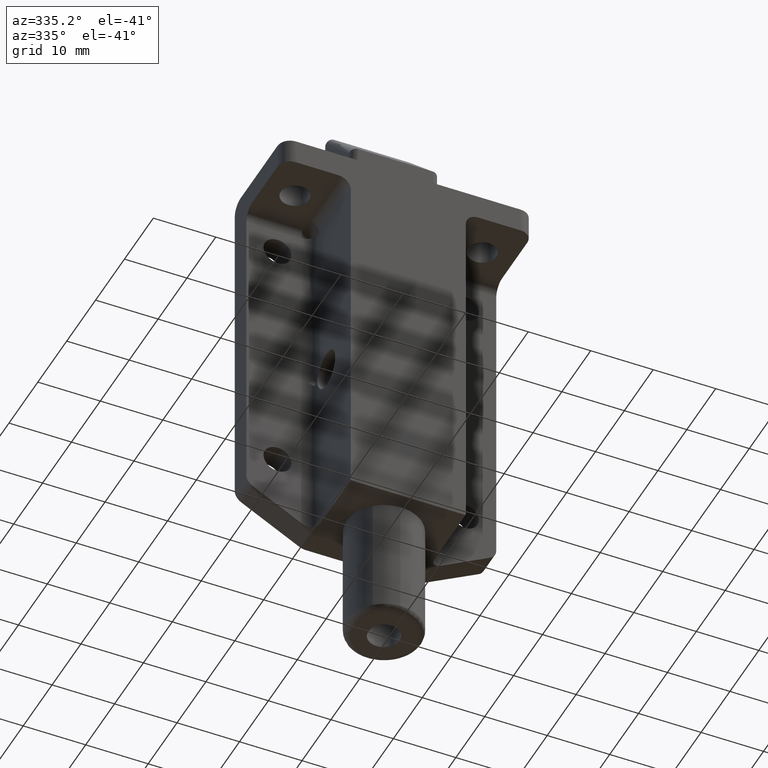
[diagram: clean part render]
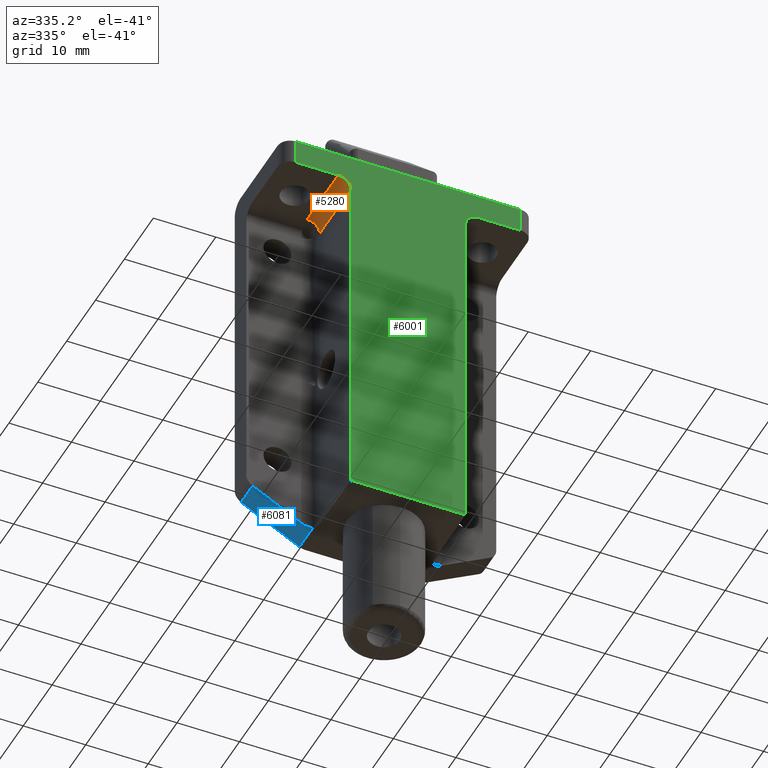
[diagram: same view with three faces highlighted in distinct colors, each labeled with its STEP entity id]
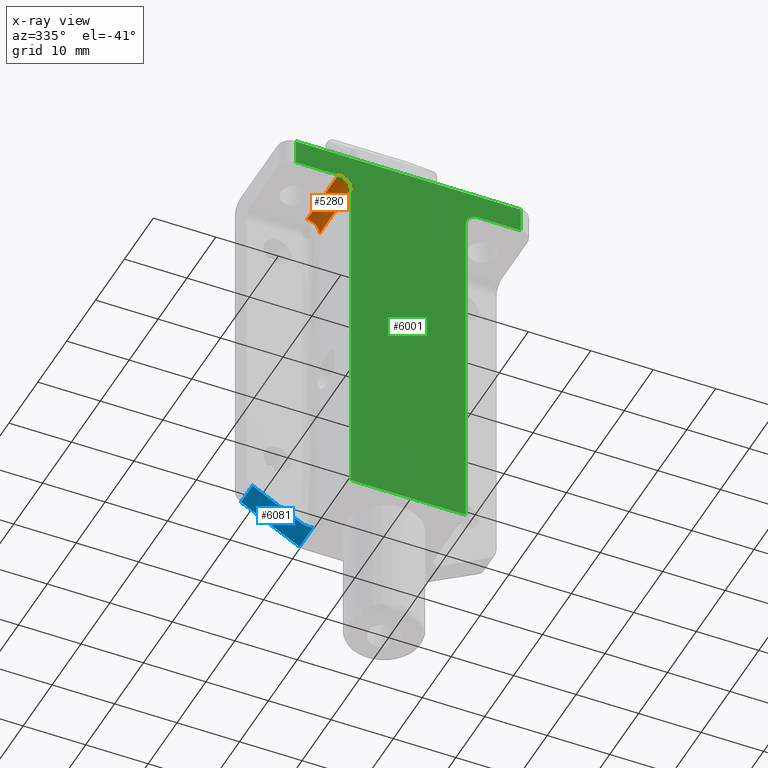
[diagram: x-ray of the same camera — body ghosted, the three highlighted faces saturated]
A machine part, auxiliary view with three faces highlighted in distinct colors.
The next image is the same camera in x-ray (body ghosted, the three faces saturated) — at least one of them is partly hidden behind the body in this view.
Their STEP definitions:

[orange] entity #5280 — the highlighted face is a freeform B-spline surface patch.
#5143=CARTESIAN_POINT('',(9.199999999999999,6.0,-6.0));
#5144=VERTEX_POINT('',#5143);
#5160=CARTESIAN_POINT('',(11.199999999999999,6.0,-4.0));
#5161=VERTEX_POINT('',#5160);
#5162=CARTESIAN_POINT('',(11.199999999999999,6.0,-4.0));
#5163=CARTESIAN_POINT('',(9.199999999999999,6.0,-4.000000000000000));
#5164=CARTESIAN_POINT('',(9.199999999999999,6.0,-6.0));
#5172=(BOUNDED_CURVE()B_SPLINE_CURVE(2,(#5162,#5163,#5164),.UNSPECIFIED.,.F.,.U.)CURVE()GEOMETRIC_REPRESENTATION_ITEM()QUASI_UNIFORM_CURVE()RATIONAL_B_SPLINE_CURVE((1.0,0.707106781186548,1.0))REPRESENTATION_ITEM(''));
#5173=EDGE_CURVE('',#5161,#5144,#5172,.T.);
#5236=CARTESIAN_POINT('',(9.200685350048886,17.070000000000000,-6.052353896615749));
#5237=CARTESIAN_POINT('',(9.200685350048886,5.723250000000000,-6.052353896615749));
#5238=CARTESIAN_POINT('',(9.143551097608020,17.069999999999997,-3.870484822811764));
#5239=CARTESIAN_POINT('',(9.143551097608020,5.723249999999999,-3.870484822811764));
#5240=CARTESIAN_POINT('',(11.322097079069710,17.070000000000000,-4.003730403156267));
#5241=CARTESIAN_POINT('',(11.322097079069710,5.723250000000000,-4.003730403156267));
#5249=(BOUNDED_SURFACE()B_SPLINE_SURFACE(1,2,((#5236,#5238,#5240),(#5237,#5239,#5241)),.UNSPECIFIED.,.F.,.F.,.U.)B_SPLINE_SURFACE_WITH_KNOTS((2,2),(3,3),(0.0,11.346750000000000),(0.0,3.520084247134669),.UNSPECIFIED.)GEOMETRIC_REPRESENTATION_ITEM()RATIONAL_B_SPLINE_SURFACE(((1.0,0.675590207615660,1.0),(1.0,0.675590207615660,1.0)))REPRESENTATION_ITEM('')SURFACE());
#5250=CARTESIAN_POINT('',(11.199999999999999,16.800000000000001,-4.0));
#5251=VERTEX_POINT('',#5250);
#5252=CARTESIAN_POINT('',(11.199999999999999,6.0,-4.0));
#5253=CARTESIAN_POINT('',(11.199999999999999,16.800000000000001,-4.0));
#5254=QUASI_UNIFORM_CURVE('',1,(#5252,#5253),.UNSPECIFIED.,.F.,.U.);
#5255=EDGE_CURVE('',#5161,#5251,#5254,.T.);
#5256=ORIENTED_EDGE('',*,*,#5255,.F.);
#5257=ORIENTED_EDGE('',*,*,#5173,.T.);
#5258=CARTESIAN_POINT('',(9.199999999999999,16.800000000000001,-6.0));
#5259=VERTEX_POINT('',#5258);
#5260=CARTESIAN_POINT('',(9.199999999999999,16.800000000000001,-6.0));
#5261=CARTESIAN_POINT('',(9.199999999999999,6.0,-6.0));
#5262=QUASI_UNIFORM_CURVE('',1,(#5260,#5261),.UNSPECIFIED.,.F.,.U.);
#5263=EDGE_CURVE('',#5259,#5144,#5262,.T.);
#5264=ORIENTED_EDGE('',*,*,#5263,.F.);
#5265=CARTESIAN_POINT('',(11.199999999999999,16.800000000000001,-4.0));
#5266=CARTESIAN_POINT('',(9.199999999999999,16.800000000000001,-4.000000000000000));
#5267=CARTESIAN_POINT('',(9.199999999999999,16.800000000000001,-6.0));
#5275=(BOUNDED_CURVE()B_SPLINE_CURVE(2,(#5265,#5266,#5267),.UNSPECIFIED.,.F.,.U.)CURVE()GEOMETRIC_REPRESENTATION_ITEM()QUASI_UNIFORM_CURVE()RATIONAL_B_SPLINE_CURVE((1.0,0.707106781186548,1.0))REPRESENTATION_ITEM(''));
#5276=EDGE_CURVE('',#5251,#5259,#5275,.T.);
#5277=ORIENTED_EDGE('',*,*,#5276,.F.);
#5278=EDGE_LOOP('',(#5256,#5257,#5264,#5277));
#5279=FACE_OUTER_BOUND('',#5278,.T.);
#5280=ADVANCED_FACE('',(#5279),#5249,.F.);

[blue] entity #6081 — the highlighted face is a freeform B-spline surface patch.
#5607=CARTESIAN_POINT('',(11.199999999999999,4.0,-60.889527885987597));
#5608=VERTEX_POINT('',#5607);
#5622=CARTESIAN_POINT('',(18.999804869913451,4.0,-56.556163451322398));
#5623=VERTEX_POINT('',#5622);
#5637=CARTESIAN_POINT('',(11.199999999999999,4.0,-60.889527885987597));
#5638=CARTESIAN_POINT('',(18.999804869913451,4.0,-56.556163451322398));
#5639=QUASI_UNIFORM_CURVE('',1,(#5637,#5638),.UNSPECIFIED.,.F.,.U.);
#5640=EDGE_CURVE('',#5608,#5623,#5639,.T.);
#5721=CARTESIAN_POINT('',(9.653000063813421,0.0,-61.748999964546897));
#5722=VERTEX_POINT('',#5721);
#5736=CARTESIAN_POINT('',(18.999804869913451,0.0,-56.556163451322398));
#5737=VERTEX_POINT('',#5736);
#5738=CARTESIAN_POINT('',(9.653000063813421,0.0,-61.748999964546897));
#5739=CARTESIAN_POINT('',(18.999804869913451,0.0,-56.556163451322398));
#5740=QUASI_UNIFORM_CURVE('',1,(#5738,#5739),.UNSPECIFIED.,.F.,.U.);
#5741=EDGE_CURVE('',#5722,#5737,#5740,.T.);
#6040=CARTESIAN_POINT('',(18.999804869913451,4.0,-56.556163451322398));
#6041=CARTESIAN_POINT('',(18.999804869913451,0.0,-56.556163451322398));
#6042=QUASI_UNIFORM_CURVE('',1,(#6040,#6041),.UNSPECIFIED.,.F.,.U.);
#6043=EDGE_CURVE('',#5623,#5737,#6042,.T.);
#6051=CARTESIAN_POINT('',(19.466678102826691,-0.236383719651735,-56.296781082565033));
#6052=CARTESIAN_POINT('',(9.186126914467128,-0.236383719651735,-62.008382286876703));
#6053=CARTESIAN_POINT('',(19.466678102826691,4.968790830049432,-56.296781082565033));
#6054=CARTESIAN_POINT('',(9.186126914467128,4.968790830049432,-62.008382286876703));
#6055=B_SPLINE_SURFACE_WITH_KNOTS('',1,1,((#6051,#6053),(#6052,#6054)),.UNSPECIFIED.,.F.,.F.,.U.,(2,2),(2,2),(0.0,11.760617375528200),(0.0,5.205174549701168),.UNSPECIFIED.);
#6056=CARTESIAN_POINT('',(9.653000063813421,4.732407321952790,-61.748999964546897));
#6057=VERTEX_POINT('',#6056);
#6058=CARTESIAN_POINT('',(11.199999999999999,4.0,-60.889527885987597));
#6059=CARTESIAN_POINT('',(10.253125595133206,4.000000000000000,-61.415586157774875));
#6060=CARTESIAN_POINT('',(9.653000063813478,4.732407321952790,-61.748999964546741));
#6068=(BOUNDED_CURVE()B_SPLINE_CURVE(2,(#6058,#6059,#6060),.UNSPECIFIED.,.F.,.U.)CURVE()GEOMETRIC_REPRESENTATION_ITEM()QUASI_UNIFORM_CURVE()RATIONAL_B_SPLINE_CURVE((1.0,0.903824191705334,1.0))REPRESENTATION_ITEM(''));
#6069=EDGE_CURVE('',#5608,#6057,#6068,.T.);
#6070=ORIENTED_EDGE('',*,*,#6069,.F.);
#6071=ORIENTED_EDGE('',*,*,#5640,.T.);
#6072=ORIENTED_EDGE('',*,*,#6043,.T.);
#6073=ORIENTED_EDGE('',*,*,#5741,.F.);
#6074=CARTESIAN_POINT('',(9.653000063813421,4.732407321952790,-61.748999964546897));
#6075=CARTESIAN_POINT('',(9.653000063813421,0.0,-61.748999964546897));
#6076=QUASI_UNIFORM_CURVE('',1,(#6074,#6075),.UNSPECIFIED.,.F.,.U.);
#6077=EDGE_CURVE('',#6057,#5722,#6076,.T.);
#6078=ORIENTED_EDGE('',*,*,#6077,.F.);
#6079=EDGE_LOOP('',(#6070,#6071,#6072,#6073,#6078));
#6080=FACE_OUTER_BOUND('',#6079,.T.);
#6081=ADVANCED_FACE('',(#6080),#6055,.T.);

[green] entity #6001 — the highlighted face is a freeform B-spline surface patch.
#5205=CARTESIAN_POINT('',(-9.199999999999999,16.800000000000001,-6.0));
#5206=VERTEX_POINT('',#5205);
#5213=CARTESIAN_POINT('',(-11.199999999999999,16.800000000000001,-4.0));
#5214=VERTEX_POINT('',#5213);
#5220=CARTESIAN_POINT('',(-9.199999999999999,16.800000000000001,-6.0));
#5221=CARTESIAN_POINT('',(-9.199999999999999,16.800000000000001,-4.000000000000000));
#5222=CARTESIAN_POINT('',(-11.199999999999999,16.800000000000001,-4.0));
#5230=(BOUNDED_CURVE()B_SPLINE_CURVE(2,(#5220,#5221,#5222),.UNSPECIFIED.,.F.,.U.)CURVE()GEOMETRIC_REPRESENTATION_ITEM()QUASI_UNIFORM_CURVE()RATIONAL_B_SPLINE_CURVE((1.0,0.707106781186548,1.0))REPRESENTATION_ITEM(''));
#5231=EDGE_CURVE('',#5206,#5214,#5230,.T.);
#5250=CARTESIAN_POINT('',(11.199999999999999,16.800000000000001,-4.0));
#5251=VERTEX_POINT('',#5250);
#5258=CARTESIAN_POINT('',(9.199999999999999,16.800000000000001,-6.0));
#5259=VERTEX_POINT('',#5258);
#5265=CARTESIAN_POINT('',(11.199999999999999,16.800000000000001,-4.0));
#5266=CARTESIAN_POINT('',(9.199999999999999,16.800000000000001,-4.000000000000000));
#5267=CARTESIAN_POINT('',(9.199999999999999,16.800000000000001,-6.0));
#5275=(BOUNDED_CURVE()B_SPLINE_CURVE(2,(#5265,#5266,#5267),.UNSPECIFIED.,.F.,.U.)CURVE()GEOMETRIC_REPRESENTATION_ITEM()QUASI_UNIFORM_CURVE()RATIONAL_B_SPLINE_CURVE((1.0,0.707106781186548,1.0))REPRESENTATION_ITEM(''));
#5276=EDGE_CURVE('',#5251,#5259,#5275,.T.);
#5385=CARTESIAN_POINT('',(18.0,16.800000000000001,-4.0));
#5386=VERTEX_POINT('',#5385);
#5402=CARTESIAN_POINT('',(18.0,16.800000000000001,0.0));
#5403=VERTEX_POINT('',#5402);
#5404=CARTESIAN_POINT('',(18.0,16.800000000000001,0.0));
#5405=CARTESIAN_POINT('',(18.0,16.800000000000001,-4.0));
#5406=QUASI_UNIFORM_CURVE('',1,(#5404,#5405),.UNSPECIFIED.,.F.,.U.);
#5407=EDGE_CURVE('',#5403,#5386,#5406,.T.);
#5446=CARTESIAN_POINT('',(-18.0,16.800000000000001,0.0));
#5447=VERTEX_POINT('',#5446);
#5463=CARTESIAN_POINT('',(-18.0,16.800000000000001,-4.0));
#5464=VERTEX_POINT('',#5463);
#5465=CARTESIAN_POINT('',(-18.0,16.800000000000001,-4.0));
#5466=CARTESIAN_POINT('',(-18.0,16.800000000000001,0.0));
#5467=QUASI_UNIFORM_CURVE('',1,(#5465,#5466),.UNSPECIFIED.,.F.,.U.);
#5468=EDGE_CURVE('',#5464,#5447,#5467,.T.);
#5498=CARTESIAN_POINT('',(-18.0,16.800000000000001,-4.0));
#5499=CARTESIAN_POINT('',(-11.199999999999999,16.800000000000001,-4.0));
#5500=QUASI_UNIFORM_CURVE('',1,(#5498,#5499),.UNSPECIFIED.,.F.,.U.);
#5501=EDGE_CURVE('',#5464,#5214,#5500,.T.);
#5582=CARTESIAN_POINT('',(18.0,16.800000000000001,-4.0));
#5583=CARTESIAN_POINT('',(11.199999999999999,16.800000000000001,-4.0));
#5584=QUASI_UNIFORM_CURVE('',1,(#5582,#5583),.UNSPECIFIED.,.F.,.U.);
#5585=EDGE_CURVE('',#5386,#5251,#5584,.T.);
#5789=CARTESIAN_POINT('',(-8.681799999999999,16.800000000000001,-62.0));
#5790=VERTEX_POINT('',#5789);
#5796=CARTESIAN_POINT('',(8.681700000000001,16.800000000000001,-62.0));
#5797=VERTEX_POINT('',#5796);
#5798=CARTESIAN_POINT('',(-8.681799999999999,16.800000000000001,-62.0));
#5799=CARTESIAN_POINT('',(8.681700000000001,16.800000000000001,-62.0));
#5800=QUASI_UNIFORM_CURVE('',1,(#5798,#5799),.UNSPECIFIED.,.F.,.U.);
#5801=EDGE_CURVE('',#5790,#5797,#5800,.T.);
#5831=CARTESIAN_POINT('',(-9.199999999999999,16.800000000000001,-61.932226627180697));
#5832=VERTEX_POINT('',#5831);
#5840=CARTESIAN_POINT('',(-9.199999999999985,16.800000000000001,-61.932226627180647));
#5841=CARTESIAN_POINT('',(-8.945378381423758,16.800000000000001,-62.000355334567814));
#5842=CARTESIAN_POINT('',(-8.681799999999999,16.800000000000001,-61.999999999999993));
#5850=(BOUNDED_CURVE()B_SPLINE_CURVE(2,(#5840,#5841,#5842),.UNSPECIFIED.,.F.,.U.)CURVE()GEOMETRIC_REPRESENTATION_ITEM()QUASI_UNIFORM_CURVE()RATIONAL_B_SPLINE_CURVE((1.0,0.991379944130055,1.0))REPRESENTATION_ITEM(''));
#5851=EDGE_CURVE('',#5832,#5790,#5850,.T.);
#5956=CARTESIAN_POINT('',(-19.798199930225021,16.800000000000001,3.096899879831973));
#5957=CARTESIAN_POINT('',(19.798200895820258,16.800000000000001,3.096899879831973));
#5958=CARTESIAN_POINT('',(-19.798199930225021,16.800000000000001,-65.096901542801575));
#5959=CARTESIAN_POINT('',(19.798200895820258,16.800000000000001,-65.096901542801575));
#5960=B_SPLINE_SURFACE_WITH_KNOTS('',1,1,((#5956,#5958),(#5957,#5959)),.UNSPECIFIED.,.F.,.F.,.U.,(2,2),(2,2),(0.0,39.596400826045283),(0.0,68.193801422633555),.UNSPECIFIED.);
#5961=ORIENTED_EDGE('',*,*,#5501,.F.);
#5962=ORIENTED_EDGE('',*,*,#5468,.T.);
#5963=CARTESIAN_POINT('',(18.0,16.800000000000001,0.0));
#5964=CARTESIAN_POINT('',(-18.0,16.800000000000001,0.0));
#5965=QUASI_UNIFORM_CURVE('',1,(#5963,#5964),.UNSPECIFIED.,.F.,.U.);
#5966=EDGE_CURVE('',#5403,#5447,#5965,.T.);
#5967=ORIENTED_EDGE('',*,*,#5966,.F.);
#5968=ORIENTED_EDGE('',*,*,#5407,.T.);
#5969=ORIENTED_EDGE('',*,*,#5585,.T.);
#5970=ORIENTED_EDGE('',*,*,#5276,.T.);
#5971=CARTESIAN_POINT('',(9.199999999999999,16.800000000000001,-61.932198666764812));
#5972=VERTEX_POINT('',#5971);
#5973=CARTESIAN_POINT('',(9.199999999999999,16.800000000000001,-6.0));
#5974=CARTESIAN_POINT('',(9.199999999999999,16.800000000000001,-61.932198666764812));
#5975=QUASI_UNIFORM_CURVE('',1,(#5973,#5974),.UNSPECIFIED.,.F.,.U.);
#5976=EDGE_CURVE('',#5259,#5972,#5975,.T.);
#5977=ORIENTED_EDGE('',*,*,#5976,.T.);
#5978=CARTESIAN_POINT('',(8.681700000000001,16.800000000000001,-61.999999999999872));
#5979=CARTESIAN_POINT('',(8.945331045590171,16.800000000000004,-62.000354204467754));
#5980=CARTESIAN_POINT('',(9.199999999999994,16.800000000000001,-61.932198666764783));
#5988=(BOUNDED_CURVE()B_SPLINE_CURVE(2,(#5978,#5979,#5980),.UNSPECIFIED.,.F.,.U.)CURVE()GEOMETRIC_REPRESENTATION_ITEM()QUASI_UNIFORM_CURVE()RATIONAL_B_SPLINE_CURVE((1.0,0.991376842153680,1.0))REPRESENTATION_ITEM(''));
#5989=EDGE_CURVE('',#5797,#5972,#5988,.T.);
#5990=ORIENTED_EDGE('',*,*,#5989,.F.);
#5991=ORIENTED_EDGE('',*,*,#5801,.F.);
#5992=ORIENTED_EDGE('',*,*,#5851,.F.);
#5993=CARTESIAN_POINT('',(-9.199999999999999,16.800000000000001,-6.0));
#5994=CARTESIAN_POINT('',(-9.199999999999999,16.800000000000001,-61.932226627180697));
#5995=QUASI_UNIFORM_CURVE('',1,(#5993,#5994),.UNSPECIFIED.,.F.,.U.);
#5996=EDGE_CURVE('',#5206,#5832,#5995,.T.);
#5997=ORIENTED_EDGE('',*,*,#5996,.F.);
#5998=ORIENTED_EDGE('',*,*,#5231,.T.);
#5999=EDGE_LOOP('',(#5961,#5962,#5967,#5968,#5969,#5970,#5977,#5990,#5991,#5992,#5997,#5998));
#6000=FACE_OUTER_BOUND('',#5999,.T.);
#6001=ADVANCED_FACE('',(#6000),#5960,.T.);